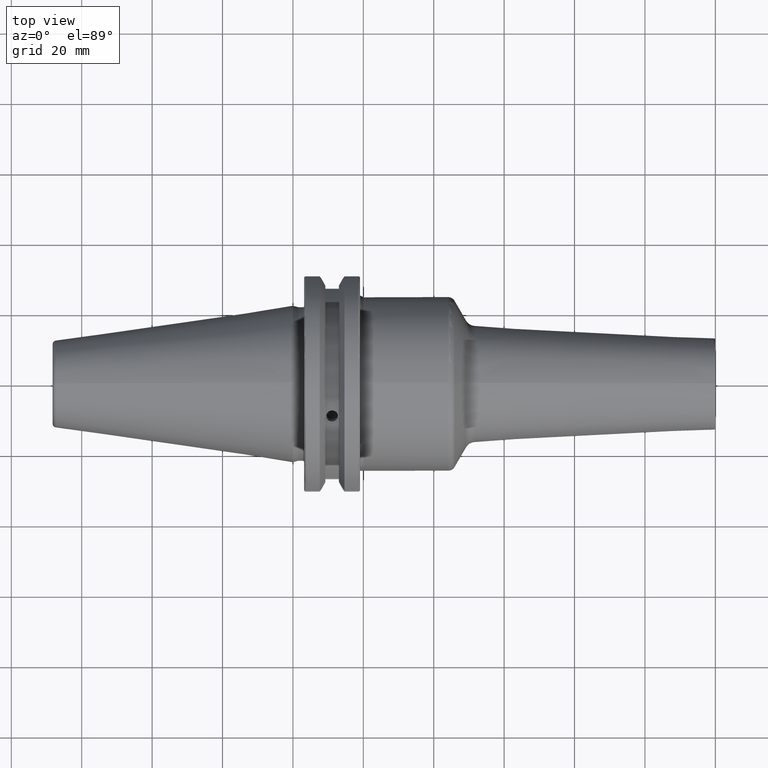
[diagram: clean part render]
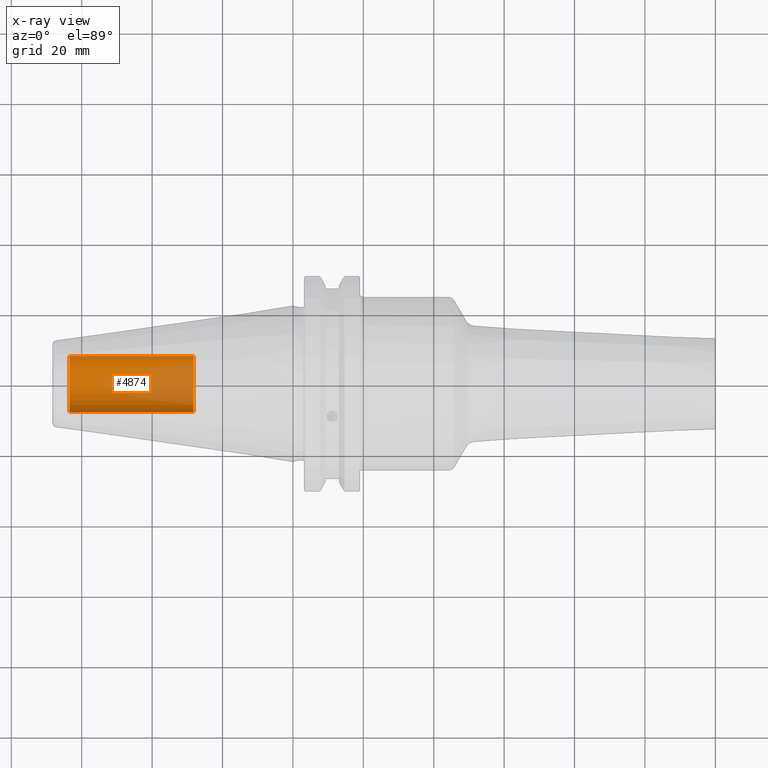
[diagram: x-ray — body ghosted, one internal face saturated and labeled with its STEP entity id]
A machine part, top view, then the same camera in x-ray: the body is ghosted and one INTERNAL B-rep face — a face not visible from any outside direction — is saturated and labeled: STEP entity #4874.
In plain terms, the highlighted cylindrical surface (edge-blend (fillet) strip) has radius 7.9375 mm, axis along (-1, 0, 0).
Its self-contained STEP definition (entity closure, byte-faithful):
#4809=CARTESIAN_POINT('',(-6.345E1,0.E0,0.E0));
#4810=DIRECTION('',(1.E0,0.E0,0.E0));
#4811=DIRECTION('',(0.E0,-1.E0,0.E0));
#4812=AXIS2_PLACEMENT_3D('',#4809,#4810,#4811);
#4819=DIRECTION('',(1.E0,0.E0,0.E0));
#4820=VECTOR('',#4819,3.52E1);
#4821=CARTESIAN_POINT('',(-6.345E1,-7.9375E0,0.E0));
#4822=LINE('',#4821,#4820);
#4823=DIRECTION('',(1.E0,0.E0,0.E0));
#4824=VECTOR('',#4823,3.52E1);
#4825=CARTESIAN_POINT('',(-6.345E1,7.9375E0,0.E0));
#4826=LINE('',#4825,#4824);
#4832=CARTESIAN_POINT('',(-2.825E1,0.E0,0.E0));
#4833=DIRECTION('',(-1.E0,0.E0,0.E0));
#4834=DIRECTION('',(0.E0,1.E0,0.E0));
#4835=AXIS2_PLACEMENT_3D('',#4832,#4833,#4834);
#4847=CARTESIAN_POINT('',(-2.825E1,7.9375E0,0.E0));
#4848=CARTESIAN_POINT('',(-2.825E1,-7.9375E0,0.E0));
#4849=VERTEX_POINT('',#4847);
#4850=VERTEX_POINT('',#4848);
#4851=CARTESIAN_POINT('',(-6.345E1,7.9375E0,0.E0));
#4852=CARTESIAN_POINT('',(-6.345E1,-7.9375E0,0.E0));
#4853=VERTEX_POINT('',#4851);
#4854=VERTEX_POINT('',#4852);
#4859=CARTESIAN_POINT('',(2.000622743963E1,0.E0,0.E0));
#4860=DIRECTION('',(-1.E0,0.E0,0.E0));
#4861=DIRECTION('',(0.E0,1.E0,0.E0));
#4862=AXIS2_PLACEMENT_3D('',#4859,#4860,#4861);
#4863=CYLINDRICAL_SURFACE('',#4862,7.9375E0);
#4865=ORIENTED_EDGE('',*,*,#4864,.T.);
#4867=ORIENTED_EDGE('',*,*,#4866,.T.);
#4869=ORIENTED_EDGE('',*,*,#4868,.T.);
#4871=ORIENTED_EDGE('',*,*,#4870,.F.);
#4872=EDGE_LOOP('',(#4865,#4867,#4869,#4871));
#4873=FACE_OUTER_BOUND('',#4872,.F.);
#4874=ADVANCED_FACE('',(#4873),#4863,.F.);
#4813=CIRCLE('',#4812,7.9375E0);
#4836=CIRCLE('',#4835,7.9375E0);
#4864=EDGE_CURVE('',#4854,#4853,#4813,.T.);
#4866=EDGE_CURVE('',#4853,#4849,#4826,.T.);
#4868=EDGE_CURVE('',#4849,#4850,#4836,.T.);
#4870=EDGE_CURVE('',#4854,#4850,#4822,.T.);